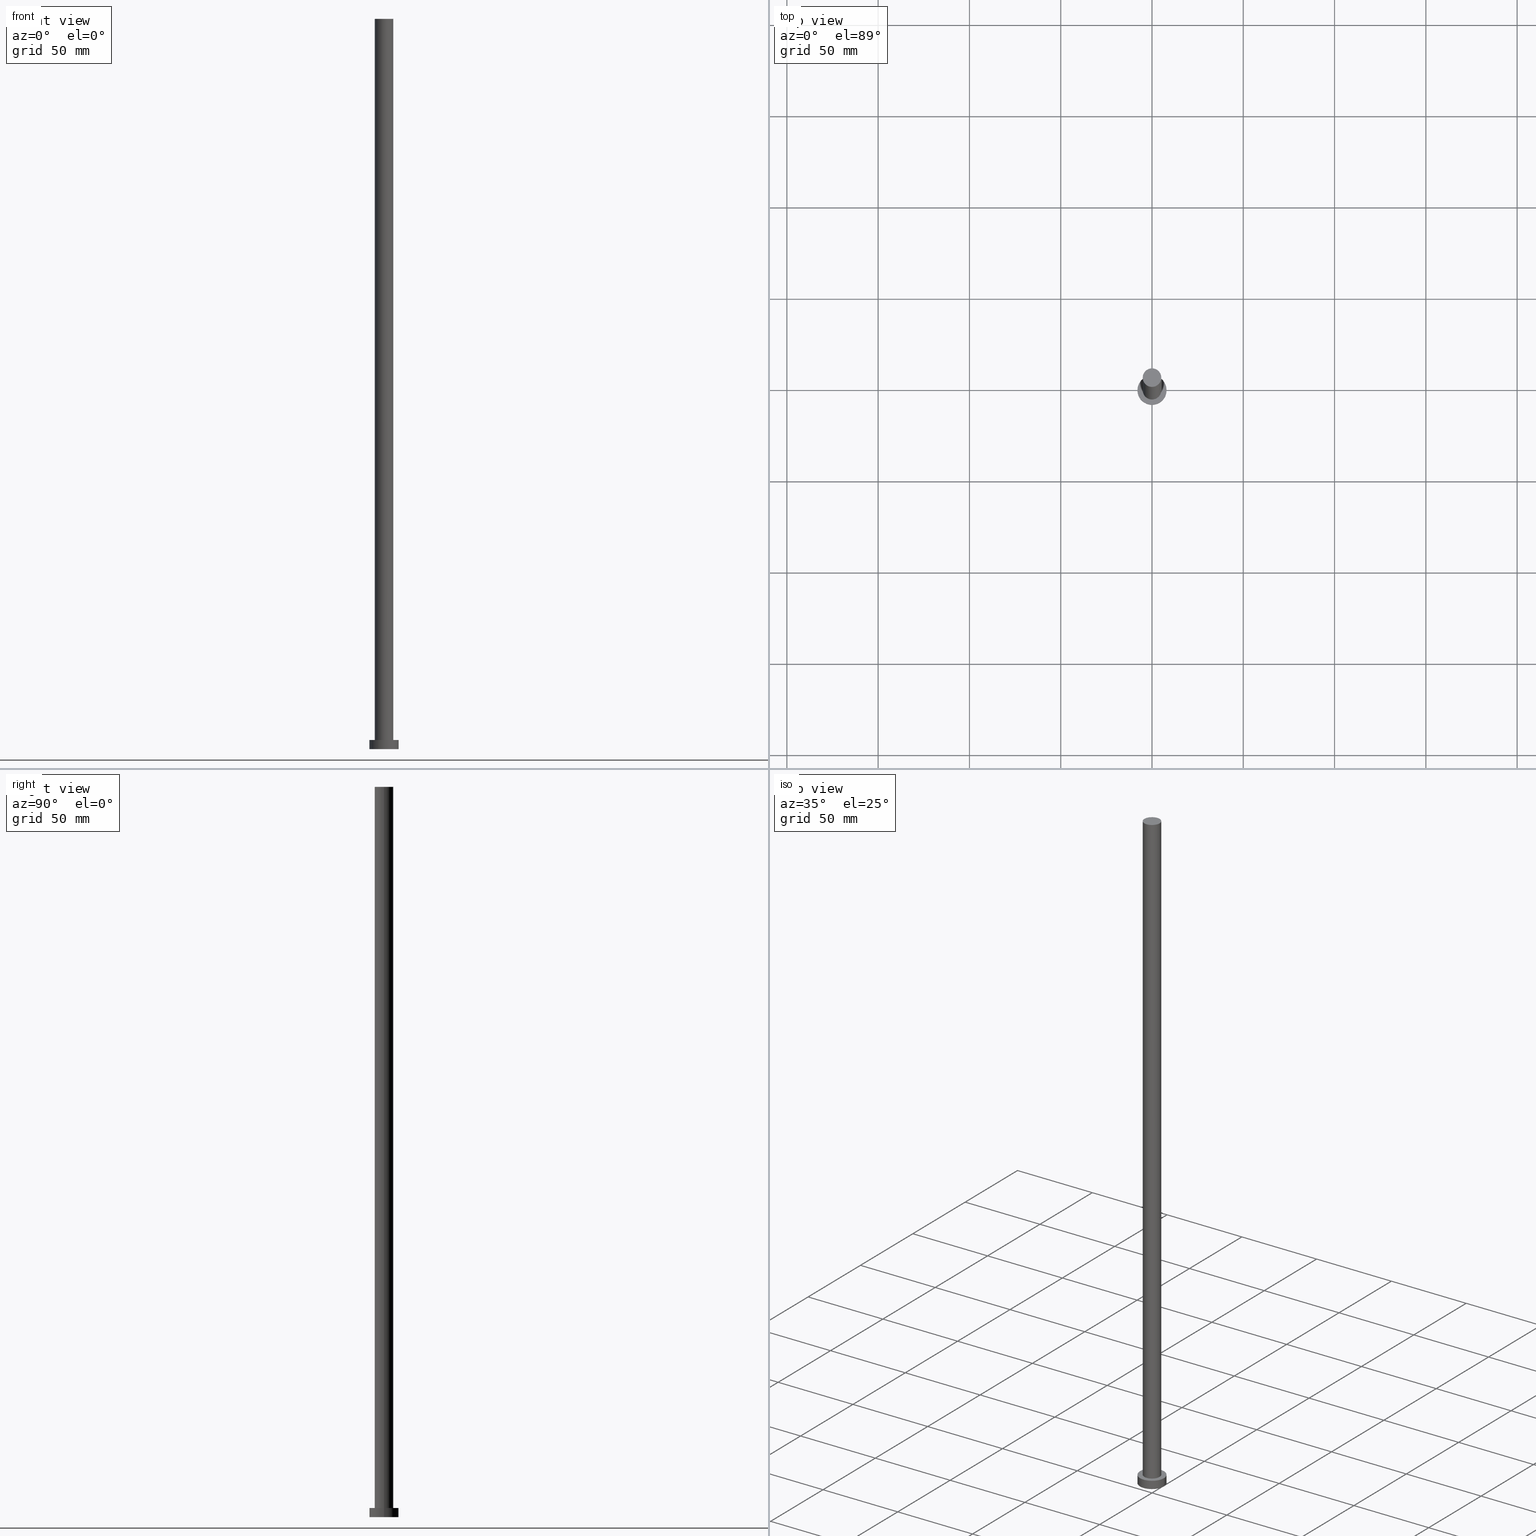
[diagram: canonical four-view strip — front | top / right | iso, engineering-drawing reading convention]
A machine part, canonical four-view strip (front | top / right | iso — engineering-drawing reading convention). The complete STEP part file that produces these views, byte-faithful:
ISO-10303-21;
HEADER;
FILE_DESCRIPTION (( 'STEP AP203' ),
    '1' );
FILE_NAME ('81d5.STEP',
    '2023-02-12T11:24:16',
    ( '' ),
    ( '' ),
    'SwSTEP 2.0',
    'SolidWorks 2019',
    '' );
FILE_SCHEMA (( 'CONFIG_CONTROL_DESIGN' ));
ENDSEC;

DATA;
#1 = DIRECTION ( 'NONE',  ( -0.000000000000000000, -0.000000000000000000, -1.000000000000000000 ) ) ;
#2 = AXIS2_PLACEMENT_3D ( 'NONE', #176, #233, #117 ) ;
#3 = ADVANCED_FACE ( 'NONE', ( #217 ), #118, .T. ) ;
#4 = DIRECTION ( 'NONE',  ( 0.000000000000000000, 0.000000000000000000, 1.000000000000000000 ) ) ;
#5 = CARTESIAN_POINT ( 'NONE',  ( 8.000000000000000000, 9.797174393178825657E-16, 5.000000000000000000 ) ) ;
#6 = ORIENTED_EDGE ( 'NONE', *, *, #30, .F. ) ;
#7 = AXIS2_PLACEMENT_3D ( 'NONE', #157, #158, #234 ) ;
#8 = ORIENTED_EDGE ( 'NONE', *, *, #251, .T. ) ;
#9 = SECURITY_CLASSIFICATION ( '', '', #11 ) ;
#10 = VERTEX_POINT ( 'NONE', #100 ) ;
#11 = SECURITY_CLASSIFICATION_LEVEL ( 'unclassified' ) ;
#12 = DIRECTION ( 'NONE',  ( 0.000000000000000000, 0.000000000000000000, 1.000000000000000000 ) ) ;
#13 = COORDINATED_UNIVERSAL_TIME_OFFSET ( 1, 0, .AHEAD. ) ;
#14 = LOCAL_TIME ( 12, 24, 16.00000000000000000, #13 ) ;
#15 = FACE_OUTER_BOUND ( 'NONE', #226, .T. ) ;
#16 = DIRECTION ( 'NONE',  ( 1.000000000000000000, 0.000000000000000000, 0.000000000000000000 ) ) ;
#17 = AXIS2_PLACEMENT_3D ( 'NONE', #253, #36, #57 ) ;
#18 = DIRECTION ( 'NONE',  ( 1.000000000000000000, 0.000000000000000000, 0.000000000000000000 ) ) ;
#19 = CARTESIAN_POINT ( 'NONE',  ( -5.100000000000001421, 0.000000000000000000, 400.0000000000000000 ) ) ;
#20 = EDGE_CURVE ( 'NONE', #83, #190, #181, .T. ) ;
#21 = LINE ( 'NONE', #5, #85 ) ;
#22 = CC_DESIGN_APPROVAL ( #160, ( #91 ) ) ;
#23 = LINE ( 'NONE', #62, #133 ) ;
#24 =( NAMED_UNIT ( * ) PLANE_ANGLE_UNIT ( ) SI_UNIT ( $, .RADIAN. ) );
#25 = AXIS2_PLACEMENT_3D ( 'NONE', #213, #196, #16 ) ;
#26 = CIRCLE ( 'NONE', #185, 5.100000000000001421 ) ;
#27 = ORIENTED_EDGE ( 'NONE', *, *, #20, .F. ) ;
#28 = DATE_TIME_ROLE ( 'creation_date' ) ;
#29 = ORIENTED_EDGE ( 'NONE', *, *, #244, .F. ) ;
#30 = EDGE_CURVE ( 'NONE', #149, #83, #177, .T. ) ;
#31 = CIRCLE ( 'NONE', #123, 5.100000000000001421 ) ;
#32 = CALENDAR_DATE ( 2023, 12, 2 ) ;
#33 = CC_DESIGN_APPROVAL ( #48, ( #9 ) ) ;
#34 = ORIENTED_EDGE ( 'NONE', *, *, #172, .F. ) ;
#35 = UNCERTAINTY_MEASURE_WITH_UNIT (LENGTH_MEASURE( 1.000000000000000082E-05 ), #199, 'distance_accuracy_value', 'NONE');
#36 = DIRECTION ( 'NONE',  ( 0.000000000000000000, 0.000000000000000000, 1.000000000000000000 ) ) ;
#37 = CARTESIAN_POINT ( 'NONE',  ( 0.000000000000000000, 0.000000000000000000, 5.000000000000000000 ) ) ;
#38 = AXIS2_PLACEMENT_3D ( 'NONE', #163, #97, #136 ) ;
#39 = DIRECTION ( 'NONE',  ( -0.000000000000000000, -0.000000000000000000, -1.000000000000000000 ) ) ;
#40 = CC_DESIGN_PERSON_AND_ORGANIZATION_ASSIGNMENT ( #203, #41, ( #168 ) ) ;
#41 = PERSON_AND_ORGANIZATION_ROLE ( 'design_owner' ) ;
#42 = CARTESIAN_POINT ( 'NONE',  ( 0.000000000000000000, 0.000000000000000000, 400.0000000000000000 ) ) ;
#43 = PRODUCT_RELATED_PRODUCT_CATEGORY ( 'detail', '', ( #168 ) ) ;
#44 = DATE_AND_TIME ( #187, #166 ) ;
#45 = PERSON_AND_ORGANIZATION ( #127, #64 ) ;
#46 =( NAMED_UNIT ( * ) SI_UNIT ( $, .STERADIAN. ) SOLID_ANGLE_UNIT ( ) );
#47 = ORIENTED_EDGE ( 'NONE', *, *, #20, .T. ) ;
#48 = APPROVAL ( #230, 'NEUR�EN�' ) ;
#49 = ORIENTED_EDGE ( 'NONE', *, *, #223, .T. ) ;
#50 = PERSON_AND_ORGANIZATION_ROLE ( 'design_supplier' ) ;
#51 = EDGE_LOOP ( 'NONE', ( #146, #101, #47, #222 ) ) ;
#52 = PERSON_AND_ORGANIZATION ( #127, #64 ) ;
#53 = CC_DESIGN_SECURITY_CLASSIFICATION ( #9, ( #102 ) ) ;
#54 = COORDINATED_UNIVERSAL_TIME_OFFSET ( 1, 0, .AHEAD. ) ;
#55 = VERTEX_POINT ( 'NONE', #214 ) ;
#56 = CIRCLE ( 'NONE', #111, 8.000000000000000000 ) ;
#57 = DIRECTION ( 'NONE',  ( 1.000000000000000000, 0.000000000000000000, 0.000000000000000000 ) ) ;
#58 = PLANE ( 'NONE',  #38 ) ;
#59 = DIRECTION ( 'NONE',  ( 0.000000000000000000, 0.000000000000000000, 1.000000000000000000 ) ) ;
#60 = CARTESIAN_POINT ( 'NONE',  ( 0.000000000000000000, 0.000000000000000000, 0.000000000000000000 ) ) ;
#61 = APPROVAL_STATUS ( 'not_yet_approved' ) ;
#62 = CARTESIAN_POINT ( 'NONE',  ( 5.100000000000001421, 6.245698675651501825E-16, 400.0000000000000000 ) ) ;
#63 = AXIS2_PLACEMENT_3D ( 'NONE', #232, #178, #198 ) ;
#64 = ORGANIZATION ( 'NEUR�EN�', 'NEUR�EN�', '' ) ;
#65 = DIRECTION ( 'NONE',  ( -0.000000000000000000, -0.000000000000000000, -1.000000000000000000 ) ) ;
#66 = ORIENTED_EDGE ( 'NONE', *, *, #30, .T. ) ;
#67 = VERTEX_POINT ( 'NONE', #114 ) ;
#68 = EDGE_CURVE ( 'NONE', #83, #149, #26, .T. ) ;
#69 = DIRECTION ( 'NONE',  ( -0.000000000000000000, -0.000000000000000000, -1.000000000000000000 ) ) ;
#70 = ORIENTED_EDGE ( 'NONE', *, *, #180, .F. ) ;
#71 = DATE_TIME_ROLE ( 'classification_date' ) ;
#72 = CC_DESIGN_DATE_AND_TIME_ASSIGNMENT ( #76, #28, ( #91 ) ) ;
#73 = DATE_AND_TIME ( #108, #220 ) ;
#74 = CIRCLE ( 'NONE', #162, 8.000000000000000000 ) ;
#75 = DATE_AND_TIME ( #32, #200 ) ;
#76 = DATE_AND_TIME ( #170, #129 ) ;
#77 = EDGE_CURVE ( 'NONE', #67, #188, #250, .T. ) ;
#78 = DIRECTION ( 'NONE',  ( 1.000000000000000000, 0.000000000000000000, 0.000000000000000000 ) ) ;
#79 = VECTOR ( 'NONE', #39, 1000.000000000000000 ) ;
#80 = ORIENTED_EDGE ( 'NONE', *, *, #204, .F. ) ;
#81 = APPROVAL_PERSON_ORGANIZATION ( #245, #160, #145 ) ;
#82 = FACE_BOUND ( 'NONE', #126, .T. ) ;
#83 = VERTEX_POINT ( 'NONE', #19 ) ;
#84 = CARTESIAN_POINT ( 'NONE',  ( 0.000000000000000000, 0.000000000000000000, 5.000000000000000000 ) ) ;
#85 = VECTOR ( 'NONE', #120, 1000.000000000000000 ) ;
#86 = APPLICATION_PROTOCOL_DEFINITION ( 'international standard', 'config_control_design', 1994, #110 ) ;
#87 = CARTESIAN_POINT ( 'NONE',  ( 0.000000000000000000, 0.000000000000000000, 0.000000000000000000 ) ) ;
#88 = EDGE_LOOP ( 'NONE', ( #34, #94, #8, #80 ) ) ;
#89 = MECHANICAL_CONTEXT ( 'NONE', #153, 'mechanical' ) ;
#90 = ORIENTED_EDGE ( 'NONE', *, *, #251, .F. ) ;
#91 = PRODUCT_DEFINITION ( 'NEZN�M�', '', #102, #175 ) ;
#92 = COORDINATED_UNIVERSAL_TIME_OFFSET ( 1, 0, .AHEAD. ) ;
#93 = ORIENTED_EDGE ( 'NONE', *, *, #204, .T. ) ;
#94 = ORIENTED_EDGE ( 'NONE', *, *, #244, .T. ) ;
#95 = VECTOR ( 'NONE', #65, 1000.000000000000000 ) ;
#96 = ORIENTED_EDGE ( 'NONE', *, *, #223, .F. ) ;
#97 = DIRECTION ( 'NONE',  ( 0.000000000000000000, 0.000000000000000000, 1.000000000000000000 ) ) ;
#98 = PERSON_AND_ORGANIZATION ( #127, #64 ) ;
#99 = CC_DESIGN_PERSON_AND_ORGANIZATION_ASSIGNMENT ( #52, #50, ( #102 ) ) ;
#100 = CARTESIAN_POINT ( 'NONE',  ( 8.000000000000000000, 9.797174393178825657E-16, 5.000000000000000000 ) ) ;
#101 = ORIENTED_EDGE ( 'NONE', *, *, #68, .F. ) ;
#102 = PRODUCT_DEFINITION_FORMATION_WITH_SPECIFIED_SOURCE ( 'LIBOVOLN�', '', #168, .NOT_KNOWN. ) ;
#103 = CARTESIAN_POINT ( 'NONE',  ( 0.000000000000000000, 0.000000000000000000, 400.0000000000000000 ) ) ;
#104 = CARTESIAN_POINT ( 'NONE',  ( 0.000000000000000000, 0.000000000000000000, 400.0000000000000000 ) ) ;
#105 = COORDINATED_UNIVERSAL_TIME_OFFSET ( 1, 0, .AHEAD. ) ;
#106 = CARTESIAN_POINT ( 'NONE',  ( 0.000000000000000000, 0.000000000000000000, 0.000000000000000000 ) ) ;
#107 = ADVANCED_FACE ( 'NONE', ( #137 ), #154, .T. ) ;
#108 = CALENDAR_DATE ( 2023, 12, 2 ) ;
#109 = ORIENTED_EDGE ( 'NONE', *, *, #139, .T. ) ;
#110 = APPLICATION_CONTEXT ( 'configuration controlled 3d designs of mechanical parts and assemblies' ) ;
#111 = AXIS2_PLACEMENT_3D ( 'NONE', #87, #147, #238 ) ;
#112 = DIRECTION ( 'NONE',  ( -0.000000000000000000, -0.000000000000000000, -1.000000000000000000 ) ) ;
#113 = ADVANCED_FACE ( 'NONE', ( #82, #15 ), #237, .T. ) ;
#114 = CARTESIAN_POINT ( 'NONE',  ( -8.000000000000000000, 0.000000000000000000, 0.000000000000000000 ) ) ;
#115 = CARTESIAN_POINT ( 'NONE',  ( 0.000000000000000000, 0.000000000000000000, 400.0000000000000000 ) ) ;
#116 = AXIS2_PLACEMENT_3D ( 'NONE', #60, #59, #18 ) ;
#117 = DIRECTION ( 'NONE',  ( -1.000000000000000000, 0.000000000000000000, 0.000000000000000000 ) ) ;
#118 = CYLINDRICAL_SURFACE ( 'NONE', #148, 8.000000000000000000 ) ;
#119 = CARTESIAN_POINT ( 'NONE',  ( 0.000000000000000000, 0.000000000000000000, 5.000000000000000000 ) ) ;
#120 = DIRECTION ( 'NONE',  ( -0.000000000000000000, -0.000000000000000000, -1.000000000000000000 ) ) ;
#121 = ADVANCED_FACE ( 'NONE', ( #216 ), #58, .F. ) ;
#122 = PERSON_AND_ORGANIZATION_ROLE ( 'creator' ) ;
#123 = AXIS2_PLACEMENT_3D ( 'NONE', #119, #183, #165 ) ;
#124 = ORIENTED_EDGE ( 'NONE', *, *, #77, .T. ) ;
#125 = APPROVAL_STATUS ( 'not_yet_approved' ) ;
#126 = EDGE_LOOP ( 'NONE', ( #70, #96 ) ) ;
#127 = PERSON ( 'NEUR�EN�', 'NEUR�EN�', 'NEUR�EN�', ('NEUR�EN�'), ('NEUR�EN�'), ('NEUR�EN�') ) ;
#128 = ORIENTED_EDGE ( 'NONE', *, *, #68, .T. ) ;
#129 = LOCAL_TIME ( 12, 24, 16.00000000000000000, #92 ) ;
#130 = PERSON_AND_ORGANIZATION ( #127, #64 ) ;
#131 = APPROVAL_DATE_TIME ( #73, #48 ) ;
#132 = ADVANCED_FACE ( 'NONE', ( #138 ), #179, .T. ) ;
#133 = VECTOR ( 'NONE', #69, 1000.000000000000000 ) ;
#134 = CARTESIAN_POINT ( 'NONE',  ( 5.100000000000001421, 6.245698675651501825E-16, 400.0000000000000000 ) ) ;
#135 = DIRECTION ( 'NONE',  ( -0.000000000000000000, -0.000000000000000000, -1.000000000000000000 ) ) ;
#136 = DIRECTION ( 'NONE',  ( 1.000000000000000000, 0.000000000000000000, -0.000000000000000000 ) ) ;
#137 = FACE_OUTER_BOUND ( 'NONE', #51, .T. ) ;
#138 = FACE_OUTER_BOUND ( 'NONE', #246, .T. ) ;
#139 = EDGE_CURVE ( 'NONE', #55, #10, #74, .T. ) ;
#140 = ADVANCED_BREP_SHAPE_REPRESENTATION ( '81d5', ( #150, #182 ), #242 ) ;
#141 = FACE_OUTER_BOUND ( 'NONE', #224, .T. ) ;
#142 = CIRCLE ( 'NONE', #25, 5.100000000000001421 ) ;
#143 = APPROVAL ( #125, 'NEUR�EN�' ) ;
#144 = CARTESIAN_POINT ( 'NONE',  ( 5.100000000000001421, 6.245698675651501825E-16, 5.000000000000000000 ) ) ;
#145 = APPROVAL_ROLE ( '' ) ;
#146 = ORIENTED_EDGE ( 'NONE', *, *, #192, .F. ) ;
#147 = DIRECTION ( 'NONE',  ( 0.000000000000000000, 0.000000000000000000, 1.000000000000000000 ) ) ;
#148 = AXIS2_PLACEMENT_3D ( 'NONE', #84, #135, #235 ) ;
#149 = VERTEX_POINT ( 'NONE', #134 ) ;
#150 = MANIFOLD_SOLID_BREP ( 'P�idat vysunut�m3', #155 ) ;
#151 = ADVANCED_FACE ( 'NONE', ( #212 ), #195, .T. ) ;
#152 = DATE_AND_TIME ( #174, #14 ) ;
#153 = APPLICATION_CONTEXT ( 'configuration controlled 3d designs of mechanical parts and assemblies' ) ;
#154 = CYLINDRICAL_SURFACE ( 'NONE', #241, 5.100000000000001421 ) ;
#155 = CLOSED_SHELL ( 'NONE', ( #132, #3, #151, #113, #121, #107, #239 ) ) ;
#156 = AXIS2_PLACEMENT_3D ( 'NONE', #42, #4, #201 ) ;
#157 = CARTESIAN_POINT ( 'NONE',  ( 0.000000000000000000, 0.000000000000000000, 5.000000000000000000 ) ) ;
#158 = DIRECTION ( 'NONE',  ( 0.000000000000000000, 0.000000000000000000, 1.000000000000000000 ) ) ;
#159 = DIRECTION ( 'NONE',  ( 0.000000000000000000, 0.000000000000000000, 1.000000000000000000 ) ) ;
#160 = APPROVAL ( #61, 'NEUR�EN�' ) ;
#161 = APPROVAL_PERSON_ORGANIZATION ( #191, #48, #227 ) ;
#162 = AXIS2_PLACEMENT_3D ( 'NONE', #37, #12, #173 ) ;
#163 = CARTESIAN_POINT ( 'NONE',  ( 0.000000000000000000, 0.000000000000000000, 0.000000000000000000 ) ) ;
#164 = DIRECTION ( 'NONE',  ( 1.000000000000000000, 0.000000000000000000, 0.000000000000000000 ) ) ;
#165 = DIRECTION ( 'NONE',  ( 1.000000000000000000, 0.000000000000000000, 0.000000000000000000 ) ) ;
#166 = LOCAL_TIME ( 12, 24, 16.00000000000000000, #105 ) ;
#167 = ORIENTED_EDGE ( 'NONE', *, *, #172, .T. ) ;
#168 = PRODUCT ( '81d5', '81d5', '', ( #89 ) ) ;
#169 = EDGE_LOOP ( 'NONE', ( #29, #205, #93, #124 ) ) ;
#170 = CALENDAR_DATE ( 2023, 12, 2 ) ;
#171 = PRODUCT_DEFINITION_SHAPE ( 'NONE', 'NONE',  #91 ) ;
#172 = EDGE_CURVE ( 'NONE', #10, #55, #211, .T. ) ;
#173 = DIRECTION ( 'NONE',  ( 1.000000000000000000, 0.000000000000000000, 0.000000000000000000 ) ) ;
#174 = CALENDAR_DATE ( 2023, 12, 2 ) ;
#175 = DESIGN_CONTEXT ( 'detailed design', #110, 'design' ) ;
#176 = CARTESIAN_POINT ( 'NONE',  ( 0.000000000000000000, 0.000000000000000000, 5.000000000000000000 ) ) ;
#177 = CIRCLE ( 'NONE', #63, 5.100000000000001421 ) ;
#178 = DIRECTION ( 'NONE',  ( 0.000000000000000000, 0.000000000000000000, 1.000000000000000000 ) ) ;
#179 = CYLINDRICAL_SURFACE ( 'NONE', #215, 5.100000000000001421 ) ;
#180 = EDGE_CURVE ( 'NONE', #190, #206, #142, .T. ) ;
#181 = LINE ( 'NONE', #255, #79 ) ;
#182 = AXIS2_PLACEMENT_3D ( 'NONE', #106, #221, #164 ) ;
#183 = DIRECTION ( 'NONE',  ( 0.000000000000000000, 0.000000000000000000, 1.000000000000000000 ) ) ;
#184 = LINE ( 'NONE', #247, #95 ) ;
#185 = AXIS2_PLACEMENT_3D ( 'NONE', #115, #159, #78 ) ;
#186 = CC_DESIGN_APPROVAL ( #143, ( #102 ) ) ;
#187 = CALENDAR_DATE ( 2023, 12, 2 ) ;
#188 = VERTEX_POINT ( 'NONE', #197 ) ;
#189 = CC_DESIGN_PERSON_AND_ORGANIZATION_ASSIGNMENT ( #130, #248, ( #102 ) ) ;
#190 = VERTEX_POINT ( 'NONE', #202 ) ;
#191 = PERSON_AND_ORGANIZATION ( #127, #64 ) ;
#192 = EDGE_CURVE ( 'NONE', #149, #206, #23, .T. ) ;
#193 = DIRECTION ( 'NONE',  ( -1.000000000000000000, 0.000000000000000000, 0.000000000000000000 ) ) ;
#194 = APPROVAL_ROLE ( '' ) ;
#195 = CYLINDRICAL_SURFACE ( 'NONE', #2, 8.000000000000000000 ) ;
#196 = DIRECTION ( 'NONE',  ( 0.000000000000000000, 0.000000000000000000, 1.000000000000000000 ) ) ;
#197 = CARTESIAN_POINT ( 'NONE',  ( 8.000000000000000000, 9.797174393178825657E-16, 0.000000000000000000 ) ) ;
#198 = DIRECTION ( 'NONE',  ( 1.000000000000000000, 0.000000000000000000, 0.000000000000000000 ) ) ;
#199 =( LENGTH_UNIT ( ) NAMED_UNIT ( * ) SI_UNIT ( .MILLI., .METRE. ) );
#200 = LOCAL_TIME ( 12, 24, 16.00000000000000000, #229 ) ;
#201 = DIRECTION ( 'NONE',  ( 1.000000000000000000, 0.000000000000000000, -0.000000000000000000 ) ) ;
#202 = CARTESIAN_POINT ( 'NONE',  ( -5.100000000000001421, 0.000000000000000000, 5.000000000000000000 ) ) ;
#203 = PERSON_AND_ORGANIZATION ( #127, #64 ) ;
#204 = EDGE_CURVE ( 'NONE', #55, #67, #184, .T. ) ;
#205 = ORIENTED_EDGE ( 'NONE', *, *, #139, .F. ) ;
#206 = VERTEX_POINT ( 'NONE', #144 ) ;
#207 = SHAPE_DEFINITION_REPRESENTATION ( #171, #140 ) ;
#208 = ORIENTED_EDGE ( 'NONE', *, *, #77, .F. ) ;
#209 = CC_DESIGN_DATE_AND_TIME_ASSIGNMENT ( #75, #71, ( #9 ) ) ;
#210 = APPROVAL_DATE_TIME ( #152, #143 ) ;
#211 = CIRCLE ( 'NONE', #17, 8.000000000000000000 ) ;
#212 = FACE_OUTER_BOUND ( 'NONE', #169, .T. ) ;
#213 = CARTESIAN_POINT ( 'NONE',  ( 0.000000000000000000, 0.000000000000000000, 5.000000000000000000 ) ) ;
#214 = CARTESIAN_POINT ( 'NONE',  ( -8.000000000000000000, 0.000000000000000000, 5.000000000000000000 ) ) ;
#215 = AXIS2_PLACEMENT_3D ( 'NONE', #104, #112, #193 ) ;
#216 = FACE_OUTER_BOUND ( 'NONE', #252, .T. ) ;
#217 = FACE_OUTER_BOUND ( 'NONE', #88, .T. ) ;
#218 = CC_DESIGN_PERSON_AND_ORGANIZATION_ASSIGNMENT ( #249, #225, ( #9 ) ) ;
#219 = PLANE ( 'NONE',  #156 ) ;
#220 = LOCAL_TIME ( 12, 24, 16.00000000000000000, #54 ) ;
#221 = DIRECTION ( 'NONE',  ( 0.000000000000000000, 0.000000000000000000, 1.000000000000000000 ) ) ;
#222 = ORIENTED_EDGE ( 'NONE', *, *, #180, .T. ) ;
#223 = EDGE_CURVE ( 'NONE', #206, #190, #31, .T. ) ;
#224 = EDGE_LOOP ( 'NONE', ( #128, #66 ) ) ;
#225 = PERSON_AND_ORGANIZATION_ROLE ( 'classification_officer' ) ;
#226 = EDGE_LOOP ( 'NONE', ( #109, #167 ) ) ;
#227 = APPROVAL_ROLE ( '' ) ;
#228 = ORIENTED_EDGE ( 'NONE', *, *, #192, .T. ) ;
#229 = COORDINATED_UNIVERSAL_TIME_OFFSET ( 1, 0, .AHEAD. ) ;
#230 = APPROVAL_STATUS ( 'not_yet_approved' ) ;
#231 = CC_DESIGN_PERSON_AND_ORGANIZATION_ASSIGNMENT ( #45, #122, ( #91 ) ) ;
#232 = CARTESIAN_POINT ( 'NONE',  ( 0.000000000000000000, 0.000000000000000000, 400.0000000000000000 ) ) ;
#233 = DIRECTION ( 'NONE',  ( -0.000000000000000000, -0.000000000000000000, -1.000000000000000000 ) ) ;
#234 = DIRECTION ( 'NONE',  ( 1.000000000000000000, 0.000000000000000000, -0.000000000000000000 ) ) ;
#235 = DIRECTION ( 'NONE',  ( -1.000000000000000000, 0.000000000000000000, 0.000000000000000000 ) ) ;
#236 = APPROVAL_PERSON_ORGANIZATION ( #98, #143, #194 ) ;
#237 = PLANE ( 'NONE',  #7 ) ;
#238 = DIRECTION ( 'NONE',  ( 1.000000000000000000, 0.000000000000000000, 0.000000000000000000 ) ) ;
#239 = ADVANCED_FACE ( 'NONE', ( #141 ), #219, .T. ) ;
#240 = APPLICATION_PROTOCOL_DEFINITION ( 'international standard', 'config_control_design', 1994, #153 ) ;
#241 = AXIS2_PLACEMENT_3D ( 'NONE', #103, #1, #254 ) ;
#242 =( GEOMETRIC_REPRESENTATION_CONTEXT ( 3 ) GLOBAL_UNCERTAINTY_ASSIGNED_CONTEXT ( ( #35 ) ) GLOBAL_UNIT_ASSIGNED_CONTEXT ( ( #199, #24, #46 ) ) REPRESENTATION_CONTEXT ( 'NONE', 'WORKASPACE' ) );
#243 = APPROVAL_DATE_TIME ( #44, #160 ) ;
#244 = EDGE_CURVE ( 'NONE', #10, #188, #21, .T. ) ;
#245 = PERSON_AND_ORGANIZATION ( #127, #64 ) ;
#246 = EDGE_LOOP ( 'NONE', ( #6, #228, #49, #27 ) ) ;
#247 = CARTESIAN_POINT ( 'NONE',  ( -8.000000000000000000, 0.000000000000000000, 5.000000000000000000 ) ) ;
#248 = PERSON_AND_ORGANIZATION_ROLE ( 'creator' ) ;
#249 = PERSON_AND_ORGANIZATION ( #127, #64 ) ;
#250 = CIRCLE ( 'NONE', #116, 8.000000000000000000 ) ;
#251 = EDGE_CURVE ( 'NONE', #188, #67, #56, .T. ) ;
#252 = EDGE_LOOP ( 'NONE', ( #208, #90 ) ) ;
#253 = CARTESIAN_POINT ( 'NONE',  ( 0.000000000000000000, 0.000000000000000000, 5.000000000000000000 ) ) ;
#254 = DIRECTION ( 'NONE',  ( -1.000000000000000000, 0.000000000000000000, 0.000000000000000000 ) ) ;
#255 = CARTESIAN_POINT ( 'NONE',  ( -5.100000000000001421, 0.000000000000000000, 400.0000000000000000 ) ) ;
ENDSEC;
END-ISO-10303-21;
